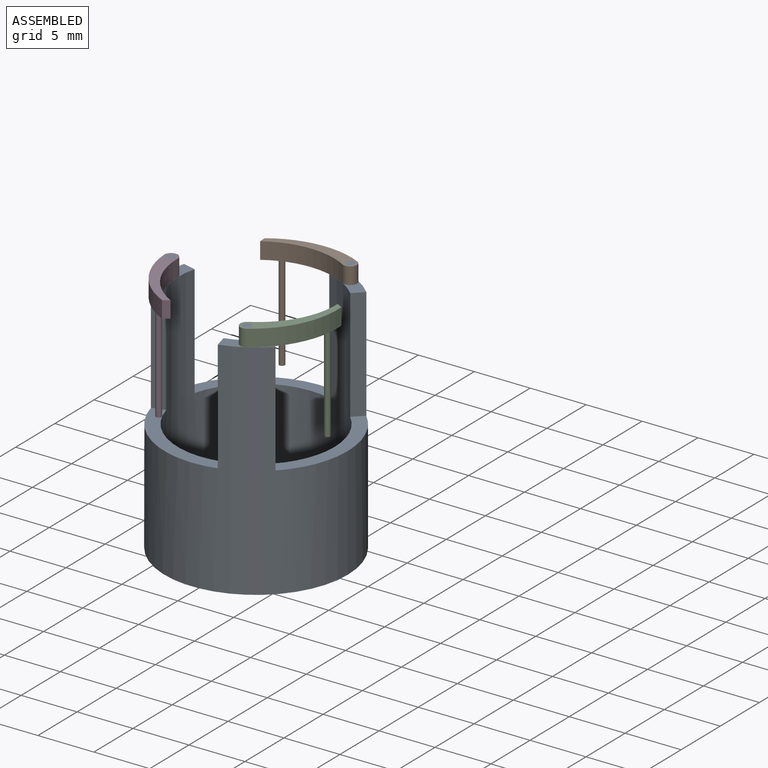
[diagram: assembled view]
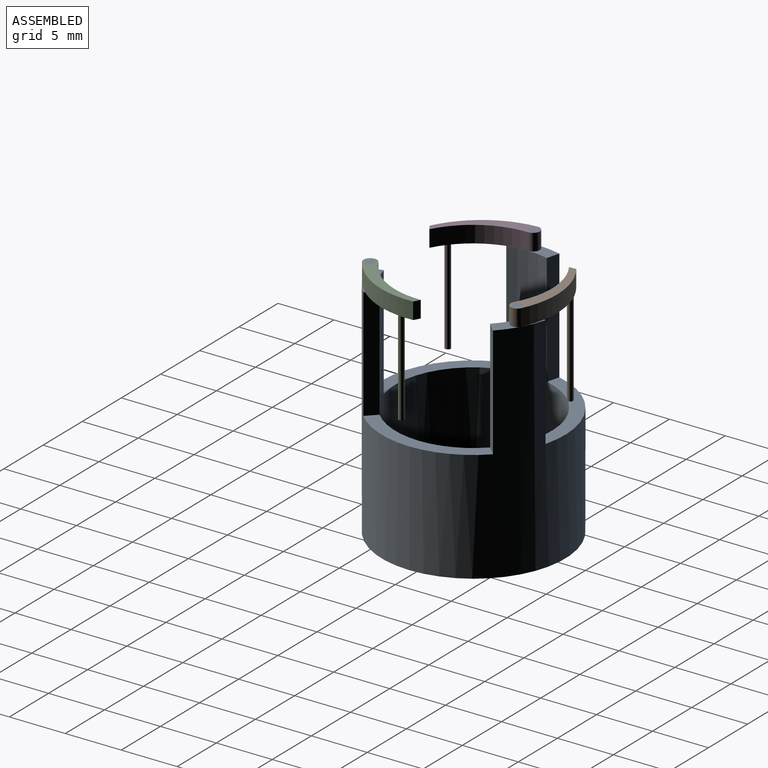
[diagram: assembled view, second angle]
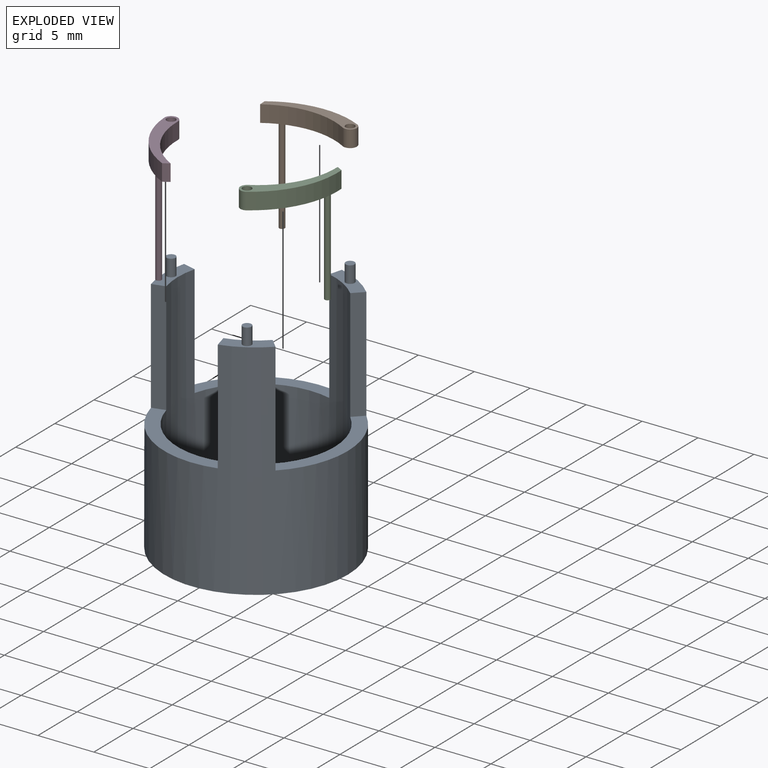
[diagram: exploded view]
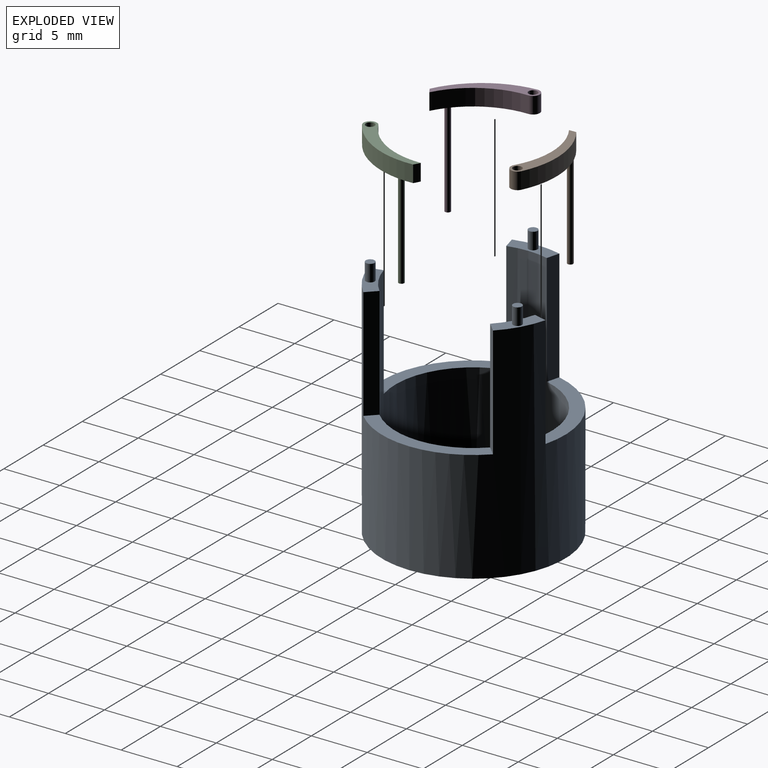
[diagram: exploded view, second angle]
ASSEMBLY  parts=4 mates=3
PART A: 21 faces, bbox 16.4x16.4x21.5 mm
  f0: cylinder r=7mm len=20mm, axis (0,0,1), area 549.8mm2, adj f2,f3,f4,f5,f12,f13,f14,f15
  f1: cylinder r=8.2mm len=20mm, axis (0,0,1), area 644mm2, adj f2,f3,f4,f5,f12,f13,f14,f15
  f2: plane 3.99x2.97mm, normal (0,0,1), area 4.3mm2, adj f0,f1,f6,f14,f19
  f3: plane 3.99x2.97mm, normal (0,0,1), area 4.3mm2, adj f0,f1,f10,f16,f20
  f4: plane 4.24x1.44mm, normal (0,0,1), area 4.3mm2, adj f0,f1,f8,f13,f17
  f5: plane 16.4x16.4mm, normal (0,0,-1), area 57.3mm2, adj f0,f1
  f6: cylinder r=0.4mm len=1.5mm, axis (0,0,-1), area 3.8mm2, adj f2,f7
  f7: plane 0.8x0.8mm, normal (0,0,1), area 0.5mm2, adj f6
  f8: cylinder r=0.4mm len=1.5mm, axis (0,0,-1), area 3.8mm2, adj f4,f9
  f9: plane 0.8x0.8mm, normal (0,0,1), area 0.5mm2, adj f8
  f10: cylinder r=0.4mm len=1.5mm, axis (0,0,-1), area 3.8mm2, adj f3,f11
  f11: plane 0.8x0.8mm, normal (0,0,1), area 0.5mm2, adj f10
  f12: plane 10.04x6.39mm, normal (0,0,1), area 14.3mm2, adj f0,f1,f13,f14
  f13: plane 10x1.16mm, normal (0.26,0.97,0), area 12mm2, adj f0,f1,f4,f12
  f14: plane 10x1.16mm, normal (-0.97,0.26,0), area 12mm2, adj f0,f1,f2,f12
  f15: plane 10.04x6.39mm, normal (0,0,1), area 14.3mm2, adj f0,f1,f16,f17
  f16: plane 10x1.16mm, normal (-0.97,-0.26,0), area 12mm2, adj f0,f1,f3,f15
  f17: plane 10x1.16mm, normal (0.26,-0.97,0), area 12mm2, adj f0,f1,f4,f15
  f18: plane 11.6x3.25mm, normal (0,0,1), area 14.3mm2, adj f0,f1,f19,f20
  f19: plane 10x0.85mm, normal (0.71,-0.71,0), area 12mm2, adj f0,f1,f2,f18
  f20: plane 10x0.85mm, normal (0.71,0.71,0), area 12mm2, adj f0,f1,f3,f18
PART B: 9 faces, bbox 8.2x2x10 mm
  f0: cylinder r=7mm len=7.27mm, axis (0,0,-1), area 11.5mm2, adj f1,f4,f5,f6
  f1: cylinder r=0.6mm len=1.5mm, axis (0,0,-1), area 2.8mm2, adj f0,f2,f5,f6
  f2: cylinder r=7.84mm len=7.9mm, axis (0,0,-1), area 12.5mm2, adj f1,f4,f5,f6
  f3: cylinder r=0.4mm len=1.5mm, axis (0,0,-1), area 3.8mm2, adj f5,f6
  f4: cylinder r=7.6mm len=1.5mm, axis (0,0,-1), area 0.9mm2, adj f0,f2,f5,f6
  f5: plane 8.2x2.01mm, normal (0,0,1), area 7mm2, adj f0,f1,f2,f3,f4
  f6: plane 8.2x2.01mm, normal (0,0,-1), area 6.8mm2, adj f0,f1,f2,f3,f4,f7
  f7: cylinder r=0.25mm len=8.5mm, axis (0,0,1), area 13.4mm2, adj f6,f8
  f8: plane 0.5x0.5mm, normal (0,0,-1), area 0.2mm2, adj f7
PART C: same geometry as B
PART D: same geometry as B
PLACE A at identity fixed
PLACE B at identity
PLACE C rot(axis=(0,0,-1),121deg) t=(0.12,0.07,0)mm
PLACE D rot(axis=(0,0,1),119.6deg) t=(0,-0.06,0)mm
MATE cylindrical C.f1 <-> A.f10  axis (0,0,1) through (3.8,-6.58,1.5)mm
MATE cylindrical B.f1 <-> A.f6  axis (0,0,1) through (3.8,6.58,1.5)mm
MATE cylindrical D.f1 <-> A.f8  axis (0,0,1) through (-7.6,0,1.5)mm
